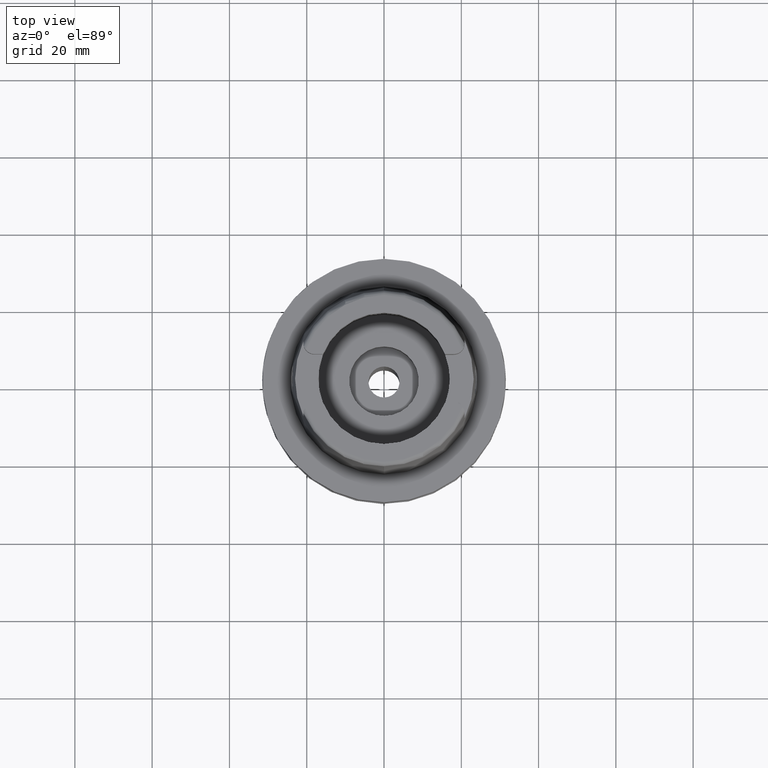
[diagram: clean part render]
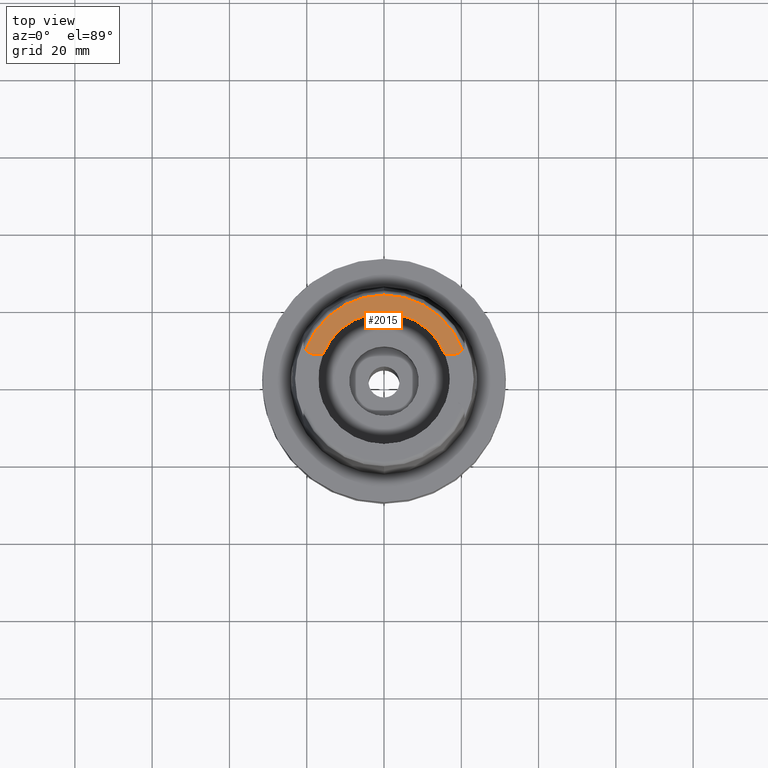
[diagram: same view with one face highlighted and labeled with its STEP entity id]
A machine part, top view. The second image highlights one B-rep face of the part: STEP entity #2015.
In plain terms, the highlighted planar face has unit normal (0, 0, 1).
Its self-contained STEP definition (entity closure, byte-faithful):
#61 = ORIENTED_EDGE ( 'NONE', *, *, #3422, .F. ) ;
#87 = CARTESIAN_POINT ( 'NONE',  ( -15.80149043602999903, 6.270000000000000462, 32.00000000000000000 ) ) ;
#190 = ORIENTED_EDGE ( 'NONE', *, *, #490, .F. ) ;
#217 = DIRECTION ( 'NONE',  ( 0.0000000000000000000, 1.000000000000000000, 0.0000000000000000000 ) ) ;
#267 = DIRECTION ( 'NONE',  ( 0.0000000000000000000, 0.0000000000000000000, 1.000000000000000000 ) ) ;
#376 = DIRECTION ( 'NONE',  ( 0.9294994374136111848, 0.3688235294118045182, 0.0000000000000000000 ) ) ;
#490 = EDGE_CURVE ( 'NONE', #1613, #791, #2063, .T. ) ;
#791 = VERTEX_POINT ( 'NONE', #2654 ) ;
#893 = AXIS2_PLACEMENT_3D ( 'NONE', #4449, #1935, #3181 ) ;
#899 = DIRECTION ( 'NONE',  ( 0.0000000000000000000, 0.0000000000000000000, 1.000000000000000000 ) ) ;
#937 = CARTESIAN_POINT ( 'NONE',  ( 18.07000000000000028, 9.070000000000000284, 32.00000000000000000 ) ) ;
#987 = CARTESIAN_POINT ( 'NONE',  ( -17.98999999999999844, 6.270000000000000462, 32.00000000000000000 ) ) ;
#1005 = CIRCLE ( 'NONE', #5228, 2.800000000000000711 ) ;
#1177 = CARTESIAN_POINT ( 'NONE',  ( 15.80149043602999903, 6.270000000000000462, 32.00000000000000000 ) ) ;
#1350 = PLANE ( 'NONE',  #4481 ) ;
#1375 = CARTESIAN_POINT ( 'NONE',  ( 0.0000000000000000000, 0.0000000000000000000, 32.00000000000000000 ) ) ;
#1553 = CIRCLE ( 'NONE', #2623, 21.57348458608998598 ) ;
#1613 = VERTEX_POINT ( 'NONE', #987 ) ;
#1817 = DIRECTION ( 'NONE',  ( 1.000000000000000000, -8.222026968698000936E-14, 0.0000000000000000000 ) ) ;
#1835 = CARTESIAN_POINT ( 'NONE',  ( 0.0000000000000000000, 0.0000000000000000000, 32.00000000000000000 ) ) ;
#1905 = CARTESIAN_POINT ( 'NONE',  ( -17.98999999999999844, 6.270000000000000462, 32.00000000000000000 ) ) ;
#1935 = DIRECTION ( 'NONE',  ( 0.0000000000000000000, 0.0000000000000000000, -1.000000000000000000 ) ) ;
#1955 = LINE ( 'NONE', #1905, #3580 ) ;
#2015 = ADVANCED_FACE ( 'NONE', ( #3044 ), #1350, .T. ) ;
#2063 = CIRCLE ( 'NONE', #893, 2.880000000000000782 ) ;
#2150 = ORIENTED_EDGE ( 'NONE', *, *, #5102, .T. ) ;
#2257 = CARTESIAN_POINT ( 'NONE',  ( 0.0000000000000000000, 0.0000000000000000000, 32.00000000000000000 ) ) ;
#2306 = CARTESIAN_POINT ( 'NONE',  ( 20.28174256341000259, 7.352969181062000814, 32.00000000000000000 ) ) ;
#2315 = VERTEX_POINT ( 'NONE', #1177 ) ;
#2344 = CARTESIAN_POINT ( 'NONE',  ( 0.0000000000000000000, 0.0000000000000000000, 32.00000000000000000 ) ) ;
#2420 = VERTEX_POINT ( 'NONE', #87 ) ;
#2451 = DIRECTION ( 'NONE',  ( 0.0000000000000000000, 0.0000000000000000000, 1.000000000000000000 ) ) ;
#2497 = EDGE_CURVE ( 'NONE', #2315, #2854, #4720, .T. ) ;
#2534 = DIRECTION ( 'NONE',  ( 0.0000000000000000000, 0.0000000000000000000, -1.000000000000000000 ) ) ;
#2623 = AXIS2_PLACEMENT_3D ( 'NONE', #2257, #4409, #3504 ) ;
#2651 = CARTESIAN_POINT ( 'NONE',  ( 15.80149043602999903, 6.270000000000000462, 32.00000000000000000 ) ) ;
#2654 = CARTESIAN_POINT ( 'NONE',  ( -20.26871835884000106, 7.388795116669998997, 32.00000000000000000 ) ) ;
#2723 = EDGE_CURVE ( 'NONE', #3574, #2420, #4933, .T. ) ;
#2854 = VERTEX_POINT ( 'NONE', #4496 ) ;
#2884 = ORIENTED_EDGE ( 'NONE', *, *, #2723, .F. ) ;
#3044 = FACE_OUTER_BOUND ( 'NONE', #3805, .T. ) ;
#3134 = EDGE_CURVE ( 'NONE', #2315, #3574, #5207, .T. ) ;
#3181 = DIRECTION ( 'NONE',  ( 0.0000000000000000000, -1.000000000000000000, 0.0000000000000000000 ) ) ;
#3422 = EDGE_CURVE ( 'NONE', #3529, #2854, #1005, .T. ) ;
#3504 = DIRECTION ( 'NONE',  ( -0.9395199128801114963, 0.3424942821446042007, 0.0000000000000000000 ) ) ;
#3529 = VERTEX_POINT ( 'NONE', #2306 ) ;
#3574 = VERTEX_POINT ( 'NONE', #5424 ) ;
#3580 = VECTOR ( 'NONE', #3994, 1000.000000000000000 ) ;
#3687 = VECTOR ( 'NONE', #1817, 1000.000000000000000 ) ;
#3805 = EDGE_LOOP ( 'NONE', ( #2884, #4637, #5032, #61, #4888, #190, #2150 ) ) ;
#3942 = DIRECTION ( 'NONE',  ( 1.000000000000000000, 0.0000000000000000000, 0.0000000000000000000 ) ) ;
#3957 = AXIS2_PLACEMENT_3D ( 'NONE', #2344, #267, #217 ) ;
#3994 = DIRECTION ( 'NONE',  ( 1.000000000000000000, 8.644330667353000255E-14, 0.0000000000000000000 ) ) ;
#4409 = DIRECTION ( 'NONE',  ( 0.0000000000000000000, 0.0000000000000000000, -1.000000000000000000 ) ) ;
#4449 = CARTESIAN_POINT ( 'NONE',  ( -17.98999999999999844, 9.150000000000000355, 32.00000000000000000 ) ) ;
#4464 = EDGE_CURVE ( 'NONE', #791, #3529, #1553, .T. ) ;
#4481 = AXIS2_PLACEMENT_3D ( 'NONE', #1375, #899, #3942 ) ;
#4496 = CARTESIAN_POINT ( 'NONE',  ( 18.07000000000000028, 6.270000000000000462, 32.00000000000000000 ) ) ;
#4611 = AXIS2_PLACEMENT_3D ( 'NONE', #1835, #2451, #376 ) ;
#4637 = ORIENTED_EDGE ( 'NONE', *, *, #3134, .F. ) ;
#4720 = LINE ( 'NONE', #2651, #3687 ) ;
#4888 = ORIENTED_EDGE ( 'NONE', *, *, #4464, .F. ) ;
#4933 = CIRCLE ( 'NONE', #3957, 17.00000000000000000 ) ;
#5032 = ORIENTED_EDGE ( 'NONE', *, *, #2497, .T. ) ;
#5095 = DIRECTION ( 'NONE',  ( 0.7899080583621905793, -0.6132252924777926717, 0.0000000000000000000 ) ) ;
#5102 = EDGE_CURVE ( 'NONE', #1613, #2420, #1955, .T. ) ;
#5207 = CIRCLE ( 'NONE', #4611, 17.00000000000000000 ) ;
#5228 = AXIS2_PLACEMENT_3D ( 'NONE', #937, #2534, #5095 ) ;
#5424 = CARTESIAN_POINT ( 'NONE',  ( 0.0000000000000000000, 17.00000000000000000, 32.00000000000000000 ) ) ;